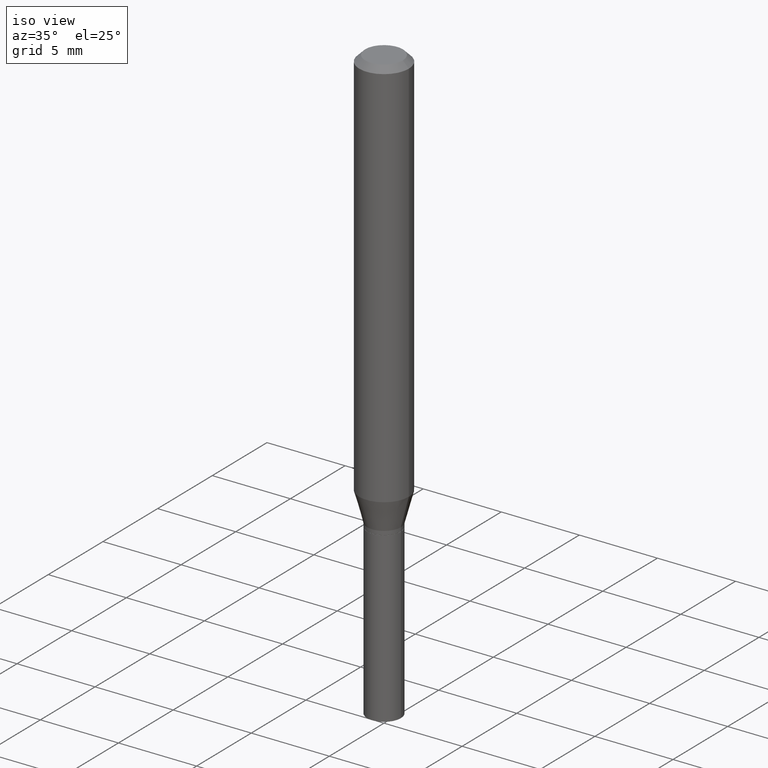
[diagram: clean part render]
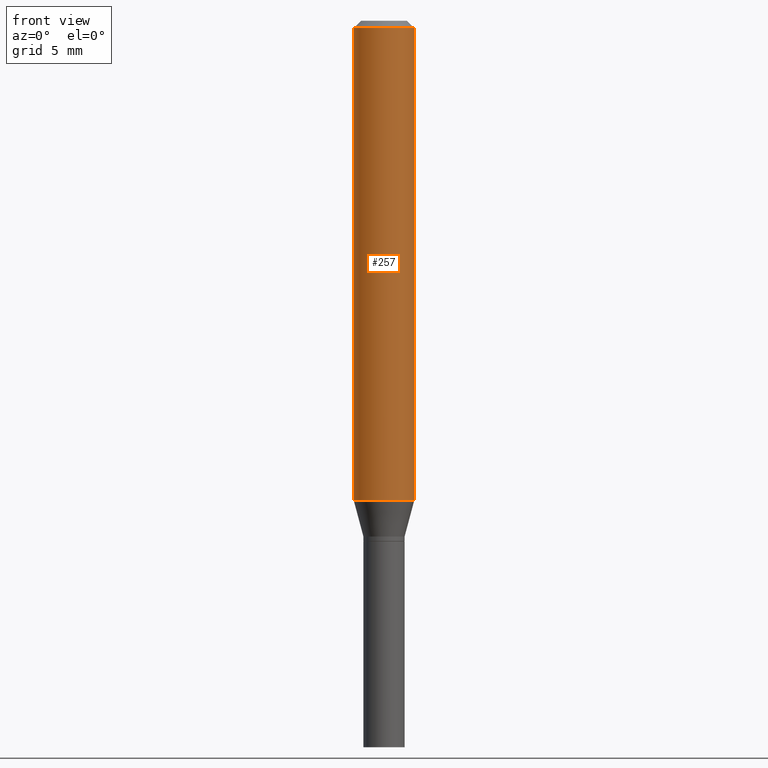
[diagram: tour spotlight — one face highlighted and labeled with its STEP entity id]
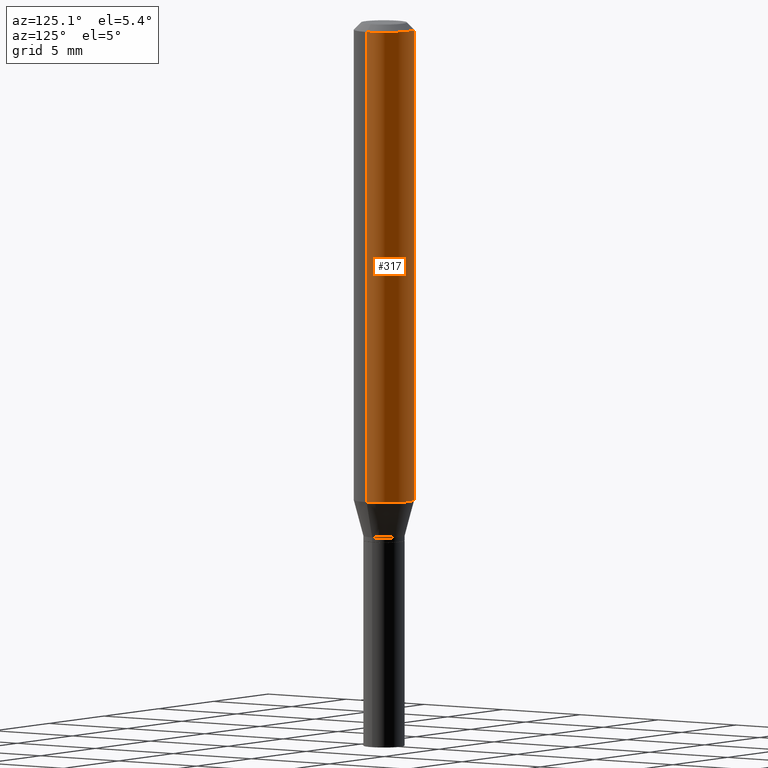
[diagram: tour spotlight — one face highlighted and labeled with its STEP entity id]
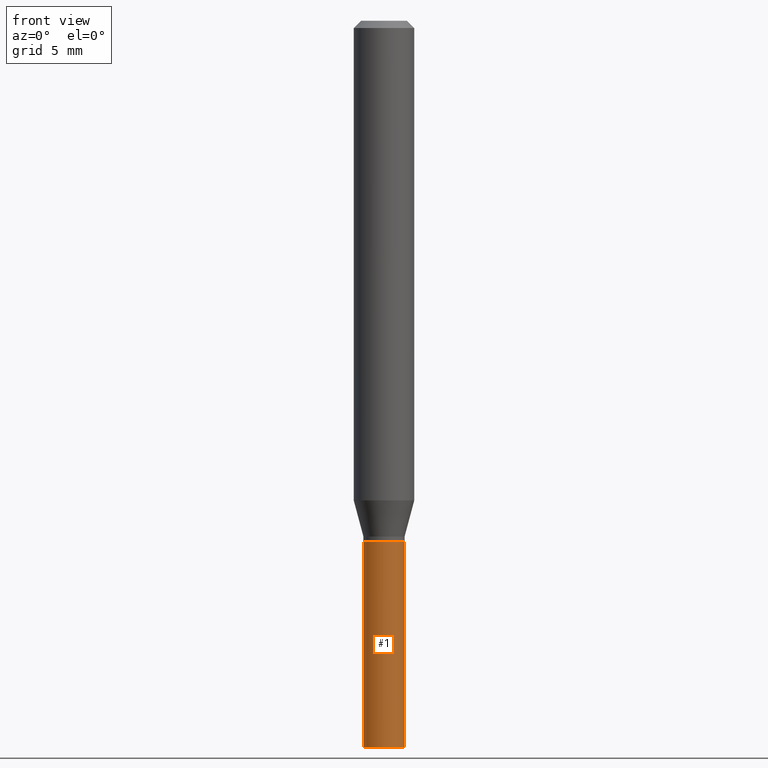
[diagram: tour spotlight — one face highlighted and labeled with its STEP entity id]
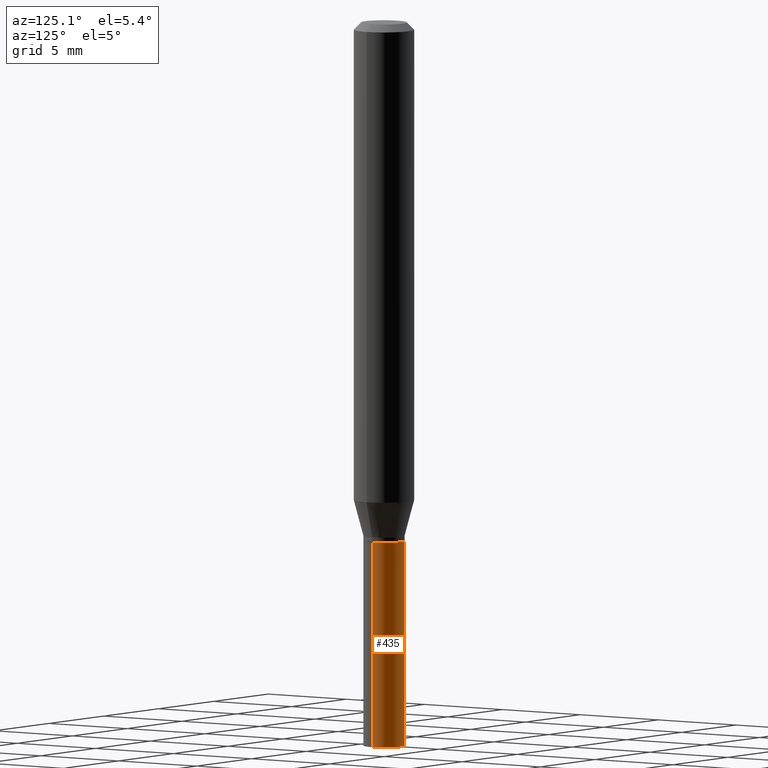
[diagram: tour spotlight — one face highlighted and labeled with its STEP entity id]
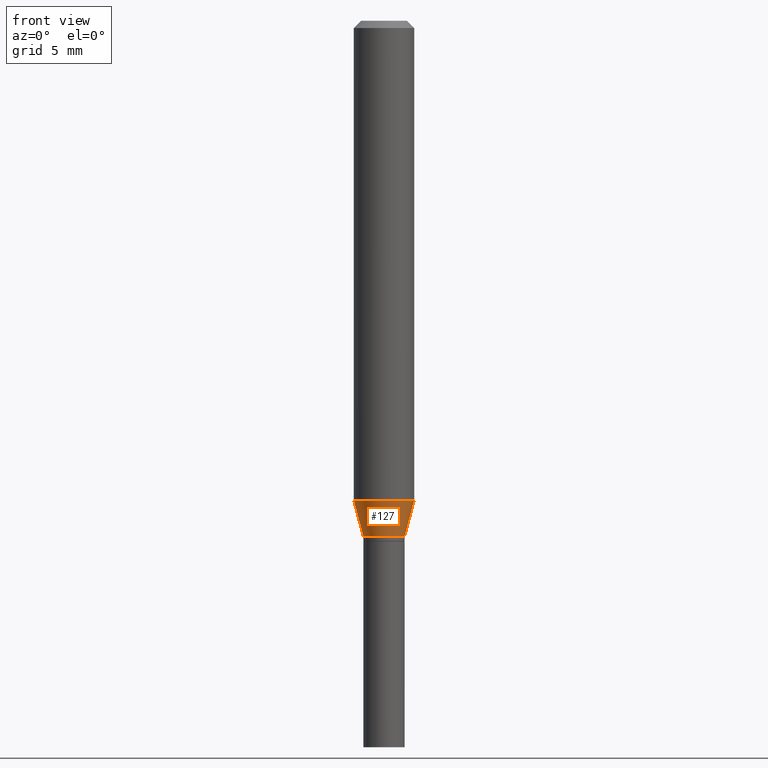
[diagram: tour spotlight — one face highlighted and labeled with its STEP entity id]
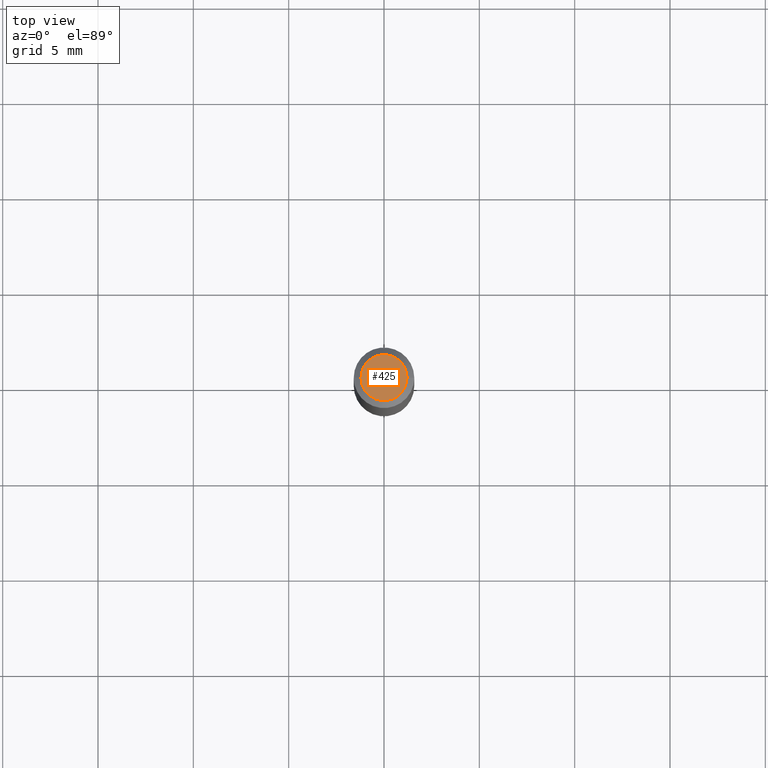
[diagram: tour spotlight — one face highlighted and labeled with its STEP entity id]
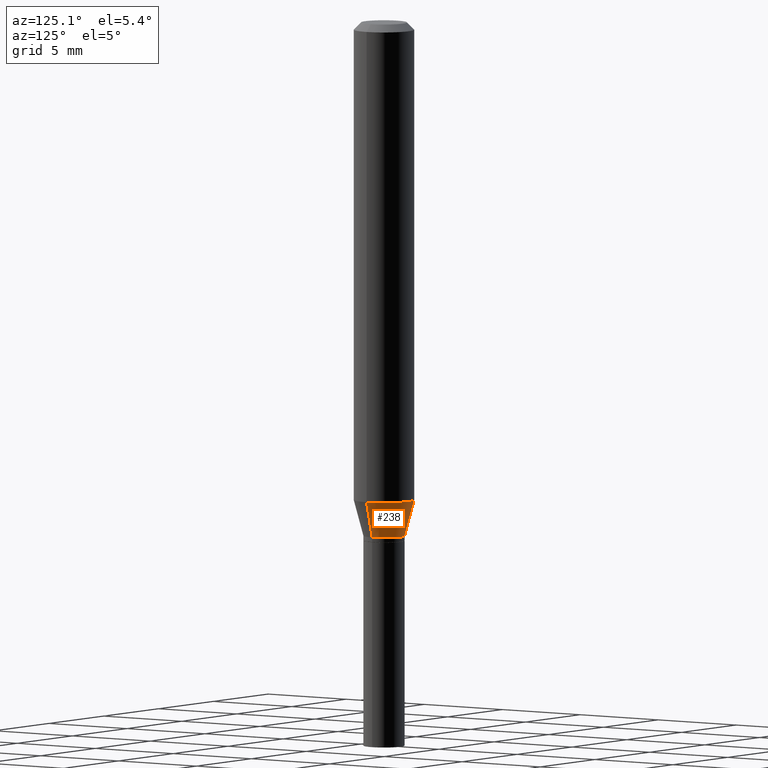
[diagram: tour spotlight — one face highlighted and labeled with its STEP entity id]
A machine part: a face-by-face anatomy tour. The part has 16 B-rep faces; the first image is the clean iso view, then the 7 largest visible faces are spotlighted one at a time (largest first), each with its STEP entity span.

Face 1 — front view, entity #257. In plain terms, the highlighted cylindrical surface (edge-blend (fillet) strip) has radius 1.5875 mm, axis along (-0, 0, 1).
Definition (entity closure, byte-faithful):
#2 = DIRECTION ( 'NONE',  ( -2.445468806185136597E-29, 3.491481338843145583E-15, 1.000000000000000000 ) ) ;
#6 = CARTESIAN_POINT ( 'NONE',  ( 3.668203209277705088E-31, -5.237222008264718399E-17, -0.01499999999999999944 ) ) ;
#11 = CARTESIAN_POINT ( 'NONE',  ( 0.06250000000000000000, -4.888073874380388472E-16, -0.01499999999999999944 ) ) ;
#16 = VERTEX_POINT ( 'NONE', #330 ) ;
#65 = EDGE_CURVE ( 'NONE', #159, #16, #207, .T. ) ;
#81 = DIRECTION ( 'NONE',  ( -2.445468806185136877E-29, 3.491481338843145188E-15, 1.000000000000000000 ) ) ;
#91 = VECTOR ( 'NONE', #202, 39.37007874015748143 ) ;
#94 = CARTESIAN_POINT ( 'NONE',  ( -0.06250000000000000000, -1.311006855622824570E-15, -0.01499999999999999944 ) ) ;
#95 = CARTESIAN_POINT ( 'NONE',  ( 0.000000000000000000, 0.000000000000000000, 0.000000000000000000 ) ) ;
#97 = CARTESIAN_POINT ( 'NONE',  ( -0.06250000000000000000, 4.440892098500626162E-16, -3.074334431409316114E-30 ) ) ;
#109 = CARTESIAN_POINT ( 'NONE',  ( 0.06250000000000000000, -4.364351673553916694E-16, 3.047610484872459871E-30 ) ) ;
#117 = VERTEX_POINT ( 'NONE', #94 ) ;
#130 = AXIS2_PLACEMENT_3D ( 'NONE', #6, #2, #136 ) ;
#136 = DIRECTION ( 'NONE',  ( 1.000000000000000000, -6.982962677686266711E-15, 0.000000000000000000 ) ) ;
#141 = VECTOR ( 'NONE', #81, 39.37007874015748143 ) ;
#154 = EDGE_LOOP ( 'NONE', ( #188, #231, #345, #282 ) ) ;
#157 = EDGE_CURVE ( 'NONE', #159, #117, #363, .T. ) ;
#159 = VERTEX_POINT ( 'NONE', #174 ) ;
#167 = FACE_OUTER_BOUND ( 'NONE', #154, .T. ) ;
#168 = DIRECTION ( 'NONE',  ( -2.445468806185136597E-29, 3.491481338843145583E-15, 1.000000000000000000 ) ) ;
#174 = CARTESIAN_POINT ( 'NONE',  ( -0.06250000000000000000, -3.013730701013064283E-15, -0.9903589838486228647 ) ) ;
#188 = ORIENTED_EDGE ( 'NONE', *, *, #157, .F. ) ;
#201 = AXIS2_PLACEMENT_3D ( 'NONE', #308, #386, #457 ) ;
#202 = DIRECTION ( 'NONE',  ( -2.445468806185136877E-29, 3.491481338843145188E-15, 1.000000000000000000 ) ) ;
#204 = DIRECTION ( 'NONE',  ( 1.000000000000000000, -6.982962677686266711E-15, 4.876176775795935793E-29 ) ) ;
#207 = CIRCLE ( 'NONE', #201, 0.06250000000000000000 ) ;
#231 = ORIENTED_EDGE ( 'NONE', *, *, #65, .T. ) ;
#257 = ADVANCED_FACE ( 'NONE', ( #167 ), #322, .T. ) ;
#265 = CIRCLE ( 'NONE', #130, 0.06250000000000000000 ) ;
#282 = ORIENTED_EDGE ( 'NONE', *, *, #296, .F. ) ;
#296 = EDGE_CURVE ( 'NONE', #117, #417, #265, .T. ) ;
#298 = LINE ( 'NONE', #109, #141 ) ;
#308 = CARTESIAN_POINT ( 'NONE',  ( 2.421892001927016751E-29, -3.457819910863126899E-15, -0.9903589838486228647 ) ) ;
#322 = CYLINDRICAL_SURFACE ( 'NONE', #421, 0.06250000000000000000 ) ;
#330 = CARTESIAN_POINT ( 'NONE',  ( 0.06250000000000000000, -3.894255078218518174E-15, -0.9903589838486228647 ) ) ;
#345 = ORIENTED_EDGE ( 'NONE', *, *, #353, .T. ) ;
#353 = EDGE_CURVE ( 'NONE', #16, #417, #298, .T. ) ;
#363 = LINE ( 'NONE', #97, #91 ) ;
#386 = DIRECTION ( 'NONE',  ( -2.445468806185136597E-29, 3.491481338843145583E-15, 1.000000000000000000 ) ) ;
#417 = VERTEX_POINT ( 'NONE', #11 ) ;
#421 = AXIS2_PLACEMENT_3D ( 'NONE', #95, #168, #204 ) ;
#457 = DIRECTION ( 'NONE',  ( 1.000000000000000000, -6.982962677686262766E-15, 0.000000000000000000 ) ) ;

Face 2 — auxiliary view, entity #317. In plain terms, the highlighted cylindrical surface (edge-blend (fillet) strip) has radius 1.5875 mm, axis along (-0, 0, 1).
Definition (entity closure, byte-faithful):
#8 = CARTESIAN_POINT ( 'NONE',  ( 2.421892001927016751E-29, -3.457819910863126899E-15, -0.9903589838486228647 ) ) ;
#11 = CARTESIAN_POINT ( 'NONE',  ( 0.06250000000000000000, -4.888073874380388472E-16, -0.01499999999999999944 ) ) ;
#16 = VERTEX_POINT ( 'NONE', #330 ) ;
#18 = EDGE_LOOP ( 'NONE', ( #160, #445, #22, #389 ) ) ;
#22 = ORIENTED_EDGE ( 'NONE', *, *, #458, .F. ) ;
#73 = DIRECTION ( 'NONE',  ( -2.445468806185136597E-29, 3.491481338843145583E-15, 1.000000000000000000 ) ) ;
#81 = DIRECTION ( 'NONE',  ( -2.445468806185136877E-29, 3.491481338843145188E-15, 1.000000000000000000 ) ) ;
#91 = VECTOR ( 'NONE', #202, 39.37007874015748143 ) ;
#94 = CARTESIAN_POINT ( 'NONE',  ( -0.06250000000000000000, -1.311006855622824570E-15, -0.01499999999999999944 ) ) ;
#97 = CARTESIAN_POINT ( 'NONE',  ( -0.06250000000000000000, 4.440892098500626162E-16, -3.074334431409316114E-30 ) ) ;
#106 = DIRECTION ( 'NONE',  ( -2.445468806185136597E-29, 3.491481338843145583E-15, 1.000000000000000000 ) ) ;
#109 = CARTESIAN_POINT ( 'NONE',  ( 0.06250000000000000000, -4.364351673553916694E-16, 3.047610484872459871E-30 ) ) ;
#116 = DIRECTION ( 'NONE',  ( 1.000000000000000000, -6.982962677686266711E-15, 4.876176775795935793E-29 ) ) ;
#117 = VERTEX_POINT ( 'NONE', #94 ) ;
#141 = VECTOR ( 'NONE', #81, 39.37007874015748143 ) ;
#142 = AXIS2_PLACEMENT_3D ( 'NONE', #341, #106, #335 ) ;
#157 = EDGE_CURVE ( 'NONE', #159, #117, #363, .T. ) ;
#159 = VERTEX_POINT ( 'NONE', #174 ) ;
#160 = ORIENTED_EDGE ( 'NONE', *, *, #169, .T. ) ;
#169 = EDGE_CURVE ( 'NONE', #16, #159, #273, .T. ) ;
#174 = CARTESIAN_POINT ( 'NONE',  ( -0.06250000000000000000, -3.013730701013064283E-15, -0.9903589838486228647 ) ) ;
#202 = DIRECTION ( 'NONE',  ( -2.445468806185136877E-29, 3.491481338843145188E-15, 1.000000000000000000 ) ) ;
#213 = DIRECTION ( 'NONE',  ( -2.445468806185136597E-29, 3.491481338843145583E-15, 1.000000000000000000 ) ) ;
#258 = CIRCLE ( 'NONE', #142, 0.06250000000000000000 ) ;
#273 = CIRCLE ( 'NONE', #450, 0.06250000000000000000 ) ;
#276 = FACE_OUTER_BOUND ( 'NONE', #18, .T. ) ;
#298 = LINE ( 'NONE', #109, #141 ) ;
#311 = AXIS2_PLACEMENT_3D ( 'NONE', #327, #213, #116 ) ;
#317 = ADVANCED_FACE ( 'NONE', ( #276 ), #367, .T. ) ;
#327 = CARTESIAN_POINT ( 'NONE',  ( 0.000000000000000000, 0.000000000000000000, 0.000000000000000000 ) ) ;
#330 = CARTESIAN_POINT ( 'NONE',  ( 0.06250000000000000000, -3.894255078218518174E-15, -0.9903589838486228647 ) ) ;
#335 = DIRECTION ( 'NONE',  ( 1.000000000000000000, -6.982962677686266711E-15, 0.000000000000000000 ) ) ;
#341 = CARTESIAN_POINT ( 'NONE',  ( 3.668203209277705088E-31, -5.237222008264718399E-17, -0.01499999999999999944 ) ) ;
#353 = EDGE_CURVE ( 'NONE', #16, #417, #298, .T. ) ;
#363 = LINE ( 'NONE', #97, #91 ) ;
#367 = CYLINDRICAL_SURFACE ( 'NONE', #311, 0.06250000000000000000 ) ;
#389 = ORIENTED_EDGE ( 'NONE', *, *, #353, .F. ) ;
#417 = VERTEX_POINT ( 'NONE', #11 ) ;
#444 = DIRECTION ( 'NONE',  ( 1.000000000000000000, -6.982962677686262766E-15, 0.000000000000000000 ) ) ;
#445 = ORIENTED_EDGE ( 'NONE', *, *, #157, .T. ) ;
#450 = AXIS2_PLACEMENT_3D ( 'NONE', #8, #73, #444 ) ;
#458 = EDGE_CURVE ( 'NONE', #417, #117, #258, .T. ) ;

Face 3 — front view, entity #1. In plain terms, the highlighted cylindrical surface (edge-blend (fillet) strip) has radius 1.0795 mm, axis along (-0, 0, 1).
Definition (entity closure, byte-faithful):
#1 = ADVANCED_FACE ( 'NONE', ( #379 ), #214, .T. ) ;
#15 = EDGE_CURVE ( 'NONE', #315, #423, #350, .T. ) ;
#40 = DIRECTION ( 'NONE',  ( 1.000000000000000000, -6.982962677686267499E-15, 4.876176775795935793E-29 ) ) ;
#42 = EDGE_CURVE ( 'NONE', #315, #125, #446, .T. ) ;
#60 = AXIS2_PLACEMENT_3D ( 'NONE', #286, #110, #146 ) ;
#77 = CARTESIAN_POINT ( 'NONE',  ( 0.04249999999999999611, -2.967759138016663549E-16, 2.072375129713272502E-30 ) ) ;
#86 = ORIENTED_EDGE ( 'NONE', *, *, #107, .T. ) ;
#101 = VERTEX_POINT ( 'NONE', #253 ) ;
#107 = EDGE_CURVE ( 'NONE', #423, #101, #411, .T. ) ;
#110 = DIRECTION ( 'NONE',  ( -2.445468806185136597E-29, 3.491481338843145583E-15, 1.000000000000000000 ) ) ;
#113 = ORIENTED_EDGE ( 'NONE', *, *, #42, .F. ) ;
#125 = VERTEX_POINT ( 'NONE', #404 ) ;
#131 = CARTESIAN_POINT ( 'NONE',  ( -0.04249999999999999611, -4.193301561062507519E-15, -1.500000000000000222 ) ) ;
#133 = DIRECTION ( 'NONE',  ( -2.445468806185136597E-29, 3.491481338843145583E-15, 1.000000000000000000 ) ) ;
#139 = EDGE_LOOP ( 'NONE', ( #113, #413, #86, #342 ) ) ;
#146 = DIRECTION ( 'NONE',  ( 1.000000000000000000, -6.982962677686276177E-15, 0.000000000000000000 ) ) ;
#170 = AXIS2_PLACEMENT_3D ( 'NONE', #336, #297, #40 ) ;
#214 = CYLINDRICAL_SURFACE ( 'NONE', #170, 0.04249999999999999611 ) ;
#218 = DIRECTION ( 'NONE',  ( -2.445468806185136877E-29, 3.491481338843145188E-15, 1.000000000000000000 ) ) ;
#235 = CIRCLE ( 'NONE', #324, 0.04249999999999999611 ) ;
#244 = EDGE_CURVE ( 'NONE', #125, #101, #235, .T. ) ;
#253 = CARTESIAN_POINT ( 'NONE',  ( 0.04249999999999999611, -4.050118353058048418E-15, -1.075000000000000178 ) ) ;
#254 = CARTESIAN_POINT ( 'NONE',  ( 0.04249999999999999611, -5.533997922066385616E-15, -1.500000000000000222 ) ) ;
#256 = VECTOR ( 'NONE', #218, 39.37007874015748143 ) ;
#262 = CARTESIAN_POINT ( 'NONE',  ( -0.04249999999999999611, 3.019806626980425514E-16, -2.090547413358334859E-30 ) ) ;
#286 = CARTESIAN_POINT ( 'NONE',  ( 3.668203209277704895E-29, -5.237222008264718177E-15, -1.500000000000000222 ) ) ;
#288 = CARTESIAN_POINT ( 'NONE',  ( 2.628878966649022066E-29, -3.753342439256381768E-15, -1.075000000000000178 ) ) ;
#297 = DIRECTION ( 'NONE',  ( -2.445468806185136597E-29, 3.491481338843145583E-15, 1.000000000000000000 ) ) ;
#315 = VERTEX_POINT ( 'NONE', #131 ) ;
#324 = AXIS2_PLACEMENT_3D ( 'NONE', #288, #133, #326 ) ;
#326 = DIRECTION ( 'NONE',  ( 1.000000000000000000, -6.982962677686265133E-15, 0.000000000000000000 ) ) ;
#336 = CARTESIAN_POINT ( 'NONE',  ( 0.000000000000000000, 0.000000000000000000, 0.000000000000000000 ) ) ;
#342 = ORIENTED_EDGE ( 'NONE', *, *, #244, .F. ) ;
#350 = CIRCLE ( 'NONE', #60, 0.04249999999999999611 ) ;
#379 = FACE_OUTER_BOUND ( 'NONE', #139, .T. ) ;
#404 = CARTESIAN_POINT ( 'NONE',  ( -0.04249999999999999611, -4.193301561062507519E-15, -1.075000000000000178 ) ) ;
#411 = LINE ( 'NONE', #77, #256 ) ;
#413 = ORIENTED_EDGE ( 'NONE', *, *, #15, .T. ) ;
#418 = DIRECTION ( 'NONE',  ( -2.445468806185136877E-29, 3.491481338843145188E-15, 1.000000000000000000 ) ) ;
#423 = VERTEX_POINT ( 'NONE', #254 ) ;
#446 = LINE ( 'NONE', #262, #459 ) ;
#459 = VECTOR ( 'NONE', #418, 39.37007874015748143 ) ;

Face 4 — auxiliary view, entity #435. In plain terms, the highlighted cylindrical surface (edge-blend (fillet) strip) has radius 1.0795 mm, axis along (-0, 0, 1).
Definition (entity closure, byte-faithful):
#20 = DIRECTION ( 'NONE',  ( -2.445468806185136597E-29, 3.491481338843145583E-15, 1.000000000000000000 ) ) ;
#39 = ORIENTED_EDGE ( 'NONE', *, *, #107, .F. ) ;
#42 = EDGE_CURVE ( 'NONE', #315, #125, #446, .T. ) ;
#51 = FACE_OUTER_BOUND ( 'NONE', #368, .T. ) ;
#61 = AXIS2_PLACEMENT_3D ( 'NONE', #138, #329, #283 ) ;
#74 = CYLINDRICAL_SURFACE ( 'NONE', #103, 0.04249999999999999611 ) ;
#77 = CARTESIAN_POINT ( 'NONE',  ( 0.04249999999999999611, -2.967759138016663549E-16, 2.072375129713272502E-30 ) ) ;
#83 = CIRCLE ( 'NONE', #61, 0.04249999999999999611 ) ;
#101 = VERTEX_POINT ( 'NONE', #253 ) ;
#103 = AXIS2_PLACEMENT_3D ( 'NONE', #451, #20, #220 ) ;
#107 = EDGE_CURVE ( 'NONE', #423, #101, #411, .T. ) ;
#125 = VERTEX_POINT ( 'NONE', #404 ) ;
#131 = CARTESIAN_POINT ( 'NONE',  ( -0.04249999999999999611, -4.193301561062507519E-15, -1.500000000000000222 ) ) ;
#138 = CARTESIAN_POINT ( 'NONE',  ( 2.628878966649022066E-29, -3.753342439256381768E-15, -1.075000000000000178 ) ) ;
#150 = ORIENTED_EDGE ( 'NONE', *, *, #42, .T. ) ;
#165 = EDGE_CURVE ( 'NONE', #101, #125, #83, .T. ) ;
#181 = ORIENTED_EDGE ( 'NONE', *, *, #343, .T. ) ;
#215 = CARTESIAN_POINT ( 'NONE',  ( 3.668203209277704895E-29, -5.237222008264718177E-15, -1.500000000000000222 ) ) ;
#218 = DIRECTION ( 'NONE',  ( -2.445468806185136877E-29, 3.491481338843145188E-15, 1.000000000000000000 ) ) ;
#220 = DIRECTION ( 'NONE',  ( 1.000000000000000000, -6.982962677686267499E-15, 4.876176775795935793E-29 ) ) ;
#252 = DIRECTION ( 'NONE',  ( -2.445468806185136597E-29, 3.491481338843145583E-15, 1.000000000000000000 ) ) ;
#253 = CARTESIAN_POINT ( 'NONE',  ( 0.04249999999999999611, -4.050118353058048418E-15, -1.075000000000000178 ) ) ;
#254 = CARTESIAN_POINT ( 'NONE',  ( 0.04249999999999999611, -5.533997922066385616E-15, -1.500000000000000222 ) ) ;
#256 = VECTOR ( 'NONE', #218, 39.37007874015748143 ) ;
#262 = CARTESIAN_POINT ( 'NONE',  ( -0.04249999999999999611, 3.019806626980425514E-16, -2.090547413358334859E-30 ) ) ;
#283 = DIRECTION ( 'NONE',  ( 1.000000000000000000, -6.982962677686265133E-15, 0.000000000000000000 ) ) ;
#315 = VERTEX_POINT ( 'NONE', #131 ) ;
#329 = DIRECTION ( 'NONE',  ( -2.445468806185136597E-29, 3.491481338843145583E-15, 1.000000000000000000 ) ) ;
#339 = CIRCLE ( 'NONE', #460, 0.04249999999999999611 ) ;
#343 = EDGE_CURVE ( 'NONE', #423, #315, #339, .T. ) ;
#368 = EDGE_LOOP ( 'NONE', ( #181, #150, #455, #39 ) ) ;
#404 = CARTESIAN_POINT ( 'NONE',  ( -0.04249999999999999611, -4.193301561062507519E-15, -1.075000000000000178 ) ) ;
#411 = LINE ( 'NONE', #77, #256 ) ;
#418 = DIRECTION ( 'NONE',  ( -2.445468806185136877E-29, 3.491481338843145188E-15, 1.000000000000000000 ) ) ;
#423 = VERTEX_POINT ( 'NONE', #254 ) ;
#435 = ADVANCED_FACE ( 'NONE', ( #51 ), #74, .T. ) ;
#446 = LINE ( 'NONE', #262, #459 ) ;
#451 = CARTESIAN_POINT ( 'NONE',  ( 0.000000000000000000, 0.000000000000000000, 0.000000000000000000 ) ) ;
#454 = DIRECTION ( 'NONE',  ( 1.000000000000000000, -6.982962677686276177E-15, 0.000000000000000000 ) ) ;
#455 = ORIENTED_EDGE ( 'NONE', *, *, #165, .F. ) ;
#459 = VECTOR ( 'NONE', #418, 39.37007874015748143 ) ;
#460 = AXIS2_PLACEMENT_3D ( 'NONE', #215, #252, #454 ) ;

Face 5 — front view, entity #127. In plain terms, the highlighted conical surface has half-angle 15 deg.
Definition (entity closure, byte-faithful):
#5 = CIRCLE ( 'NONE', #45, 0.04250000000000007938 ) ;
#7 = DIRECTION ( 'NONE',  ( 1.000000000000000000, -6.982962677686261977E-15, 0.000000000000000000 ) ) ;
#9 = LINE ( 'NONE', #143, #419 ) ;
#16 = VERTEX_POINT ( 'NONE', #330 ) ;
#32 = CARTESIAN_POINT ( 'NONE',  ( 2.604424278587170520E-29, -3.718427625867950118E-15, -1.065000000000000169 ) ) ;
#34 = EDGE_CURVE ( 'NONE', #69, #16, #9, .T. ) ;
#37 = CONICAL_SURFACE ( 'NONE', #96, 0.04250000000000007938, 0.2617993877991496299 ) ;
#41 = LINE ( 'NONE', #364, #359 ) ;
#45 = AXIS2_PLACEMENT_3D ( 'NONE', #407, #249, #7 ) ;
#65 = EDGE_CURVE ( 'NONE', #159, #16, #207, .T. ) ;
#69 = VERTEX_POINT ( 'NONE', #232 ) ;
#96 = AXIS2_PLACEMENT_3D ( 'NONE', #32, #166, #98 ) ;
#98 = DIRECTION ( 'NONE',  ( 1.000000000000000000, -6.982962677686261977E-15, 0.000000000000000000 ) ) ;
#99 = CARTESIAN_POINT ( 'NONE',  ( -0.04250000000000007938, -3.215088832091485777E-15, -1.065000000000000169 ) ) ;
#122 = ORIENTED_EDGE ( 'NONE', *, *, #182, .F. ) ;
#127 = ADVANCED_FACE ( 'NONE', ( #361 ), #37, .T. ) ;
#143 = CARTESIAN_POINT ( 'NONE',  ( 0.04250000000000007938, -4.015203539669616769E-15, -1.065000000000000169 ) ) ;
#159 = VERTEX_POINT ( 'NONE', #174 ) ;
#166 = DIRECTION ( 'NONE',  ( -2.445468806185136597E-29, 3.491481338843145583E-15, 1.000000000000000000 ) ) ;
#171 = DIRECTION ( 'NONE',  ( -0.2588190451025209615, 5.211531920934547097E-15, 0.9659258262890682012 ) ) ;
#174 = CARTESIAN_POINT ( 'NONE',  ( -0.06250000000000000000, -3.013730701013064283E-15, -0.9903589838486228647 ) ) ;
#182 = EDGE_CURVE ( 'NONE', #307, #159, #41, .T. ) ;
#201 = AXIS2_PLACEMENT_3D ( 'NONE', #308, #386, #457 ) ;
#207 = CIRCLE ( 'NONE', #201, 0.06250000000000000000 ) ;
#212 = ORIENTED_EDGE ( 'NONE', *, *, #285, .T. ) ;
#232 = CARTESIAN_POINT ( 'NONE',  ( 0.04250000000000007938, -4.015203539669616769E-15, -1.065000000000000169 ) ) ;
#249 = DIRECTION ( 'NONE',  ( -2.445468806185136597E-29, 3.491481338843145583E-15, 1.000000000000000000 ) ) ;
#285 = EDGE_CURVE ( 'NONE', #307, #69, #5, .T. ) ;
#290 = DIRECTION ( 'NONE',  ( 0.2588190451025209615, 1.565188264969624926E-15, 0.9659258262890682012 ) ) ;
#307 = VERTEX_POINT ( 'NONE', #99 ) ;
#308 = CARTESIAN_POINT ( 'NONE',  ( 2.421892001927016751E-29, -3.457819910863126899E-15, -0.9903589838486228647 ) ) ;
#330 = CARTESIAN_POINT ( 'NONE',  ( 0.06250000000000000000, -3.894255078218518174E-15, -0.9903589838486228647 ) ) ;
#338 = EDGE_LOOP ( 'NONE', ( #122, #212, #347, #382 ) ) ;
#347 = ORIENTED_EDGE ( 'NONE', *, *, #34, .T. ) ;
#359 = VECTOR ( 'NONE', #171, 39.37007874015748143 ) ;
#361 = FACE_OUTER_BOUND ( 'NONE', #338, .T. ) ;
#364 = CARTESIAN_POINT ( 'NONE',  ( -0.04250000000000007938, -3.416446963169907271E-15, -1.065000000000000169 ) ) ;
#382 = ORIENTED_EDGE ( 'NONE', *, *, #65, .F. ) ;
#386 = DIRECTION ( 'NONE',  ( -2.445468806185136597E-29, 3.491481338843145583E-15, 1.000000000000000000 ) ) ;
#407 = CARTESIAN_POINT ( 'NONE',  ( 2.604424278587170520E-29, -3.718427625867950118E-15, -1.065000000000000169 ) ) ;
#419 = VECTOR ( 'NONE', #290, 39.37007874015748143 ) ;
#457 = DIRECTION ( 'NONE',  ( 1.000000000000000000, -6.982962677686262766E-15, 0.000000000000000000 ) ) ;

Face 6 — top view, entity #425. In plain terms, the highlighted planar face has unit normal (0, -0, -1).
Definition (entity closure, byte-faithful):
#17 = AXIS2_PLACEMENT_3D ( 'NONE', #280, #92, #186 ) ;
#53 = DIRECTION ( 'NONE',  ( 2.438088387897960049E-29, -3.491481338843145188E-15, -1.000000000000000000 ) ) ;
#92 = DIRECTION ( 'NONE',  ( -2.445468806185136597E-29, 3.491481338843145583E-15, 1.000000000000000000 ) ) ;
#114 = DIRECTION ( 'NONE',  ( 1.000000000000000000, -6.982962677686267499E-15, 4.884662768193073002E-29 ) ) ;
#144 = DIRECTION ( 'NONE',  ( -1.000000000000000000, 6.982962677686265922E-15, -4.876176775795935793E-29 ) ) ;
#151 = EDGE_CURVE ( 'NONE', #380, #155, #287, .T. ) ;
#155 = VERTEX_POINT ( 'NONE', #219 ) ;
#183 = AXIS2_PLACEMENT_3D ( 'NONE', #261, #447, #114 ) ;
#186 = DIRECTION ( 'NONE',  ( 1.000000000000000000, -6.982962677686267499E-15, 4.884662768193073002E-29 ) ) ;
#219 = CARTESIAN_POINT ( 'NONE',  ( -0.04749999999999999362, 3.578768372314212971E-16, 9.926955091278110846E-17 ) ) ;
#225 = CARTESIAN_POINT ( 'NONE',  ( 0.04749999999999999362, -4.035134999187576651E-16, 9.926955091278610047E-17 ) ) ;
#261 = CARTESIAN_POINT ( 'NONE',  ( -2.427605901612193195E-45, 3.465977845273231710E-31, 9.926955091278351202E-17 ) ) ;
#264 = EDGE_LOOP ( 'NONE', ( #309, #355 ) ) ;
#280 = CARTESIAN_POINT ( 'NONE',  ( -2.427605901612193195E-45, 3.465977845273231710E-31, 9.926955091278351202E-17 ) ) ;
#287 = CIRCLE ( 'NONE', #17, 0.04749999999999999362 ) ;
#309 = ORIENTED_EDGE ( 'NONE', *, *, #415, .T. ) ;
#355 = ORIENTED_EDGE ( 'NONE', *, *, #151, .T. ) ;
#380 = VERTEX_POINT ( 'NONE', #225 ) ;
#383 = CARTESIAN_POINT ( 'NONE',  ( 3.316907271900976096E-16, 0.04749999999999999362, -1.162105881386576343E-16 ) ) ;
#408 = CIRCLE ( 'NONE', #183, 0.04749999999999999362 ) ;
#410 = PLANE ( 'NONE',  #466 ) ;
#415 = EDGE_CURVE ( 'NONE', #155, #380, #408, .T. ) ;
#416 = FACE_OUTER_BOUND ( 'NONE', #264, .T. ) ;
#425 = ADVANCED_FACE ( 'NONE', ( #416 ), #410, .F. ) ;
#447 = DIRECTION ( 'NONE',  ( -2.445468806185136597E-29, 3.491481338843145583E-15, 1.000000000000000000 ) ) ;
#466 = AXIS2_PLACEMENT_3D ( 'NONE', #383, #53, #144 ) ;

Face 7 — auxiliary view, entity #238. In plain terms, the highlighted conical surface has half-angle 15 deg.
Definition (entity closure, byte-faithful):
#8 = CARTESIAN_POINT ( 'NONE',  ( 2.421892001927016751E-29, -3.457819910863126899E-15, -0.9903589838486228647 ) ) ;
#9 = LINE ( 'NONE', #143, #419 ) ;
#10 = CONICAL_SURFACE ( 'NONE', #64, 0.04250000000000007938, 0.2617993877991496299 ) ;
#16 = VERTEX_POINT ( 'NONE', #330 ) ;
#34 = EDGE_CURVE ( 'NONE', #69, #16, #9, .T. ) ;
#35 = CARTESIAN_POINT ( 'NONE',  ( 2.604424278587170520E-29, -3.718427625867950118E-15, -1.065000000000000169 ) ) ;
#41 = LINE ( 'NONE', #364, #359 ) ;
#50 = EDGE_CURVE ( 'NONE', #69, #307, #241, .T. ) ;
#58 = DIRECTION ( 'NONE',  ( -2.445468806185136597E-29, 3.491481338843145583E-15, 1.000000000000000000 ) ) ;
#64 = AXIS2_PLACEMENT_3D ( 'NONE', #35, #441, #102 ) ;
#69 = VERTEX_POINT ( 'NONE', #232 ) ;
#73 = DIRECTION ( 'NONE',  ( -2.445468806185136597E-29, 3.491481338843145583E-15, 1.000000000000000000 ) ) ;
#99 = CARTESIAN_POINT ( 'NONE',  ( -0.04250000000000007938, -3.215088832091485777E-15, -1.065000000000000169 ) ) ;
#102 = DIRECTION ( 'NONE',  ( 1.000000000000000000, -6.982962677686261977E-15, 0.000000000000000000 ) ) ;
#143 = CARTESIAN_POINT ( 'NONE',  ( 0.04250000000000007938, -4.015203539669616769E-15, -1.065000000000000169 ) ) ;
#159 = VERTEX_POINT ( 'NONE', #174 ) ;
#169 = EDGE_CURVE ( 'NONE', #16, #159, #273, .T. ) ;
#171 = DIRECTION ( 'NONE',  ( -0.2588190451025209615, 5.211531920934547097E-15, 0.9659258262890682012 ) ) ;
#174 = CARTESIAN_POINT ( 'NONE',  ( -0.06250000000000000000, -3.013730701013064283E-15, -0.9903589838486228647 ) ) ;
#182 = EDGE_CURVE ( 'NONE', #307, #159, #41, .T. ) ;
#190 = ORIENTED_EDGE ( 'NONE', *, *, #50, .T. ) ;
#224 = ORIENTED_EDGE ( 'NONE', *, *, #182, .T. ) ;
#227 = DIRECTION ( 'NONE',  ( 1.000000000000000000, -6.982962677686261977E-15, 0.000000000000000000 ) ) ;
#232 = CARTESIAN_POINT ( 'NONE',  ( 0.04250000000000007938, -4.015203539669616769E-15, -1.065000000000000169 ) ) ;
#238 = ADVANCED_FACE ( 'NONE', ( #362 ), #10, .T. ) ;
#241 = CIRCLE ( 'NONE', #393, 0.04250000000000007938 ) ;
#273 = CIRCLE ( 'NONE', #450, 0.06250000000000000000 ) ;
#290 = DIRECTION ( 'NONE',  ( 0.2588190451025209615, 1.565188264969624926E-15, 0.9659258262890682012 ) ) ;
#307 = VERTEX_POINT ( 'NONE', #99 ) ;
#312 = ORIENTED_EDGE ( 'NONE', *, *, #34, .F. ) ;
#330 = CARTESIAN_POINT ( 'NONE',  ( 0.06250000000000000000, -3.894255078218518174E-15, -0.9903589838486228647 ) ) ;
#344 = ORIENTED_EDGE ( 'NONE', *, *, #169, .F. ) ;
#359 = VECTOR ( 'NONE', #171, 39.37007874015748143 ) ;
#362 = FACE_OUTER_BOUND ( 'NONE', #385, .T. ) ;
#364 = CARTESIAN_POINT ( 'NONE',  ( -0.04250000000000007938, -3.416446963169907271E-15, -1.065000000000000169 ) ) ;
#385 = EDGE_LOOP ( 'NONE', ( #190, #224, #344, #312 ) ) ;
#391 = CARTESIAN_POINT ( 'NONE',  ( 2.604424278587170520E-29, -3.718427625867950118E-15, -1.065000000000000169 ) ) ;
#393 = AXIS2_PLACEMENT_3D ( 'NONE', #391, #58, #227 ) ;
#419 = VECTOR ( 'NONE', #290, 39.37007874015748143 ) ;
#441 = DIRECTION ( 'NONE',  ( -2.445468806185136597E-29, 3.491481338843145583E-15, 1.000000000000000000 ) ) ;
#444 = DIRECTION ( 'NONE',  ( 1.000000000000000000, -6.982962677686262766E-15, 0.000000000000000000 ) ) ;
#450 = AXIS2_PLACEMENT_3D ( 'NONE', #8, #73, #444 ) ;